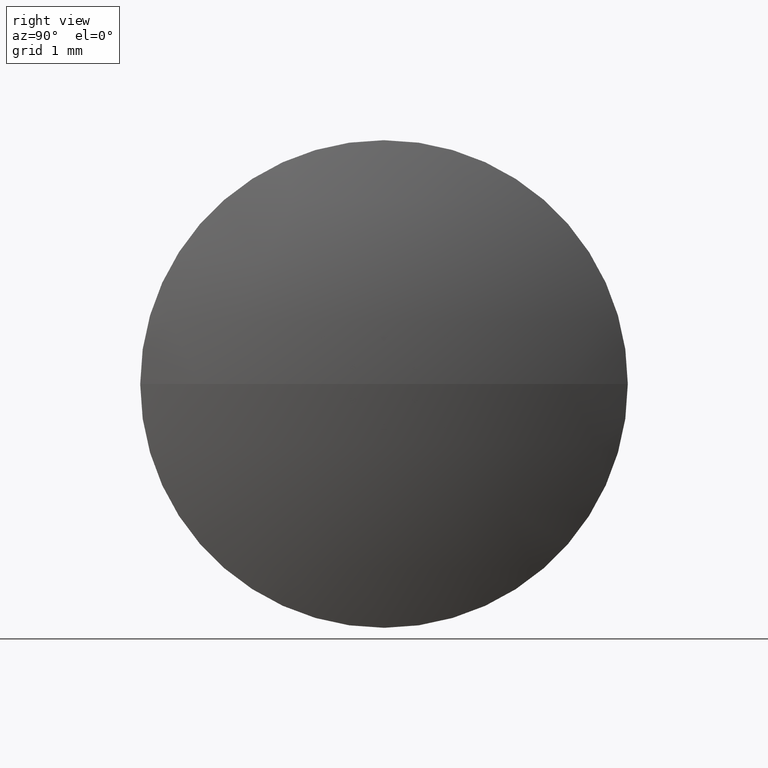
[diagram: clean part render]
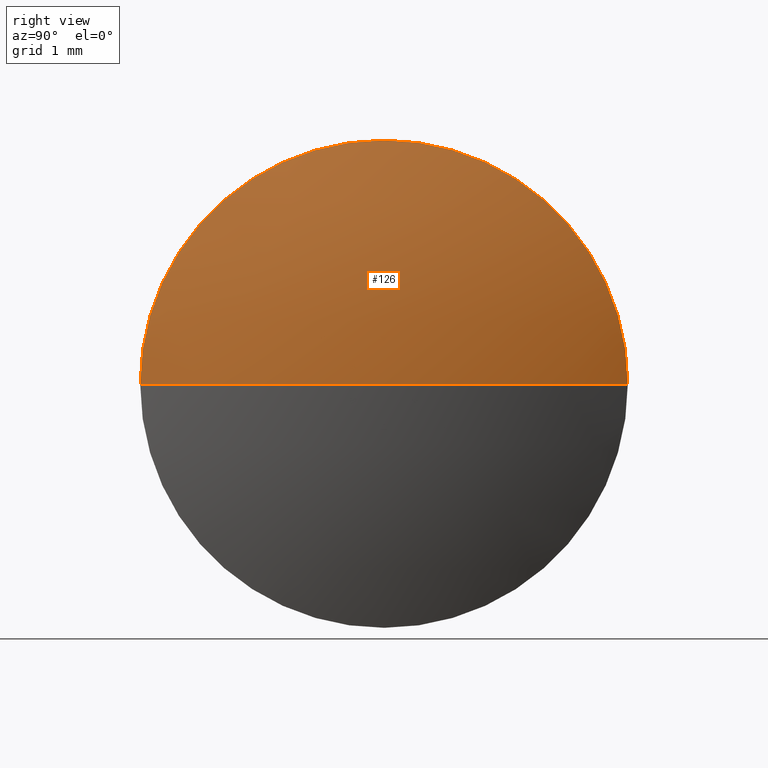
[diagram: same view with one face highlighted and labeled with its STEP entity id]
A machine part, right view. The second image highlights one B-rep face of the part: STEP entity #126.
In plain terms, the highlighted spherical surface has radius 8.6788 mm.
Its self-contained STEP definition (entity closure, byte-faithful):
#4 = DIRECTION ( 'NONE',  ( -1.000000000000000000, 0.0000000000000000000, 0.0000000000000000000 ) ) ;
#5 = DIRECTION ( 'NONE',  ( 0.0000000000000000000, 0.0000000000000000000, -1.000000000000000000 ) ) ;
#12 = VERTEX_POINT ( 'NONE', #254 ) ;
#14 = EDGE_CURVE ( 'NONE', #12, #268, #215, .T. ) ;
#16 = CARTESIAN_POINT ( 'NONE',  ( 21.38819252269869200, 14.48412118657909000, 3.673940397442051500E-016 ) ) ;
#22 = CARTESIAN_POINT ( 'NONE',  ( 13.24438487191312900, 11.48412118657909500, 0.0000000000000000000 ) ) ;
#30 = EDGE_CURVE ( 'NONE', #177, #268, #68, .T. ) ;
#44 = DIRECTION ( 'NONE',  ( 0.0000000000000000000, -1.224646799147353200E-016, 1.000000000000000000 ) ) ;
#48 = VERTEX_POINT ( 'NONE', #131 ) ;
#53 = ORIENTED_EDGE ( 'NONE', *, *, #302, .F. ) ;
#55 = DIRECTION ( 'NONE',  ( -1.000000000000000000, -0.0000000000000000000, -0.0000000000000000000 ) ) ;
#68 = CIRCLE ( 'NONE', #132, 8.678801936499844800 ) ;
#71 = DIRECTION ( 'NONE',  ( -1.000000000000000000, -0.0000000000000000000, -0.0000000000000000000 ) ) ;
#73 = ORIENTED_EDGE ( 'NONE', *, *, #30, .T. ) ;
#75 = DIRECTION ( 'NONE',  ( 0.0000000000000000000, -1.000000000000000000, -1.224646799147353000E-016 ) ) ;
#77 = CARTESIAN_POINT ( 'NONE',  ( 21.92318680841297200, 11.48412118657909500, 0.0000000000000000000 ) ) ;
#81 = CARTESIAN_POINT ( 'NONE',  ( 13.24438487191312900, 11.48412118657909500, 0.0000000000000000000 ) ) ;
#107 = AXIS2_PLACEMENT_3D ( 'NONE', #22, #188, #141 ) ;
#126 = ADVANCED_FACE ( 'NONE', ( #230 ), #168, .T. ) ;
#130 = CARTESIAN_POINT ( 'NONE',  ( 21.38819252269869200, 11.48412118657908500, 0.0000000000000000000 ) ) ;
#131 = CARTESIAN_POINT ( 'NONE',  ( 21.38819252269869200, 8.484121186579091800, 0.0000000000000000000 ) ) ;
#132 = AXIS2_PLACEMENT_3D ( 'NONE', #334, #44, #75 ) ;
#141 = DIRECTION ( 'NONE',  ( 0.0000000000000000000, -1.000000000000000000, 0.0000000000000000000 ) ) ;
#168 = SPHERICAL_SURFACE ( 'NONE', #107, 8.678801936499844800 ) ;
#177 = VERTEX_POINT ( 'NONE', #77 ) ;
#178 = AXIS2_PLACEMENT_3D ( 'NONE', #130, #71, #197 ) ;
#188 = DIRECTION ( 'NONE',  ( 0.0000000000000000000, 0.0000000000000000000, 1.000000000000000000 ) ) ;
#197 = DIRECTION ( 'NONE',  ( 0.0000000000000000000, 0.0000000000000000000, 1.000000000000000000 ) ) ;
#201 = AXIS2_PLACEMENT_3D ( 'NONE', #313, #55, #288 ) ;
#215 = CIRCLE ( 'NONE', #178, 2.999999999999997300 ) ;
#216 = AXIS2_PLACEMENT_3D ( 'NONE', #81, #5, #4 ) ;
#221 = CIRCLE ( 'NONE', #201, 2.999999999999997300 ) ;
#224 = ORIENTED_EDGE ( 'NONE', *, *, #343, .F. ) ;
#230 = FACE_OUTER_BOUND ( 'NONE', #327, .T. ) ;
#254 = CARTESIAN_POINT ( 'NONE',  ( 21.38819252269869200, 11.48412118657908500, 2.999999999999997300 ) ) ;
#268 = VERTEX_POINT ( 'NONE', #16 ) ;
#270 = CIRCLE ( 'NONE', #216, 8.678801936499844800 ) ;
#281 = ORIENTED_EDGE ( 'NONE', *, *, #14, .F. ) ;
#288 = DIRECTION ( 'NONE',  ( 0.0000000000000000000, 0.0000000000000000000, 1.000000000000000000 ) ) ;
#302 = EDGE_CURVE ( 'NONE', #48, #12, #221, .T. ) ;
#313 = CARTESIAN_POINT ( 'NONE',  ( 21.38819252269869200, 11.48412118657908500, 0.0000000000000000000 ) ) ;
#327 = EDGE_LOOP ( 'NONE', ( #224, #73, #281, #53 ) ) ;
#334 = CARTESIAN_POINT ( 'NONE',  ( 13.24438487191312900, 11.48412118657909500, 0.0000000000000000000 ) ) ;
#343 = EDGE_CURVE ( 'NONE', #177, #48, #270, .T. ) ;